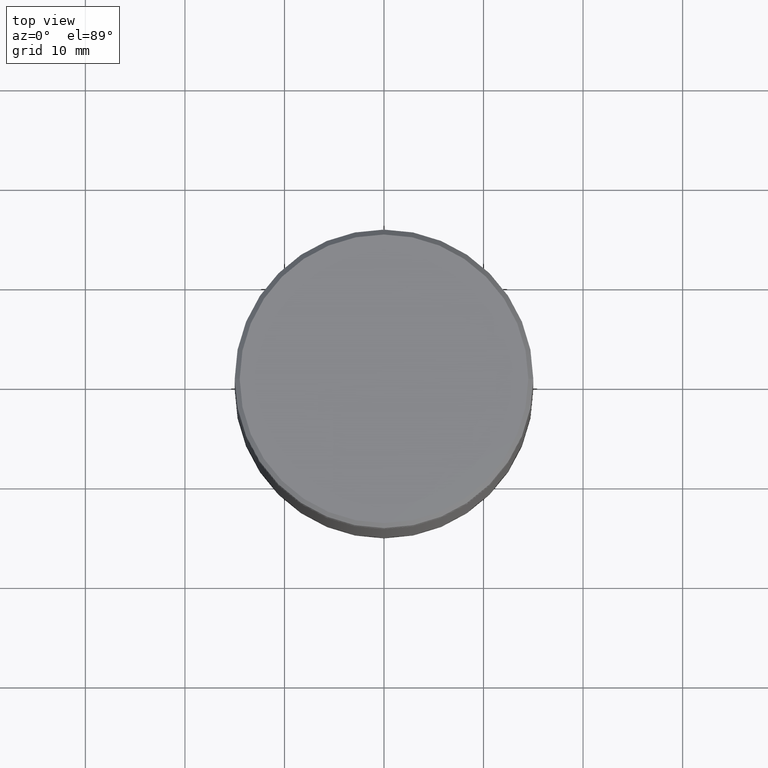
[diagram: clean part render]
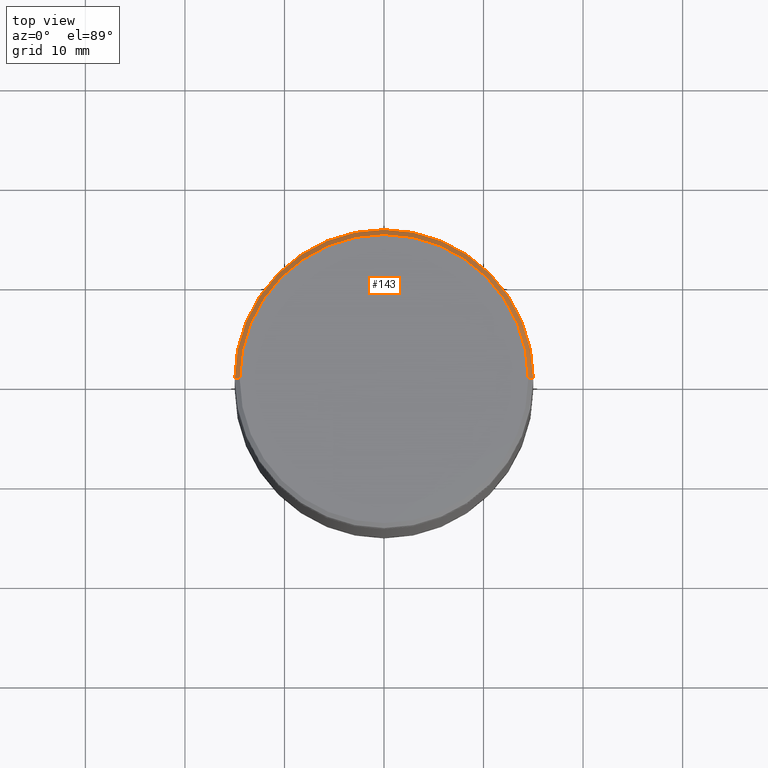
[diagram: same view with one face highlighted and labeled with its STEP entity id]
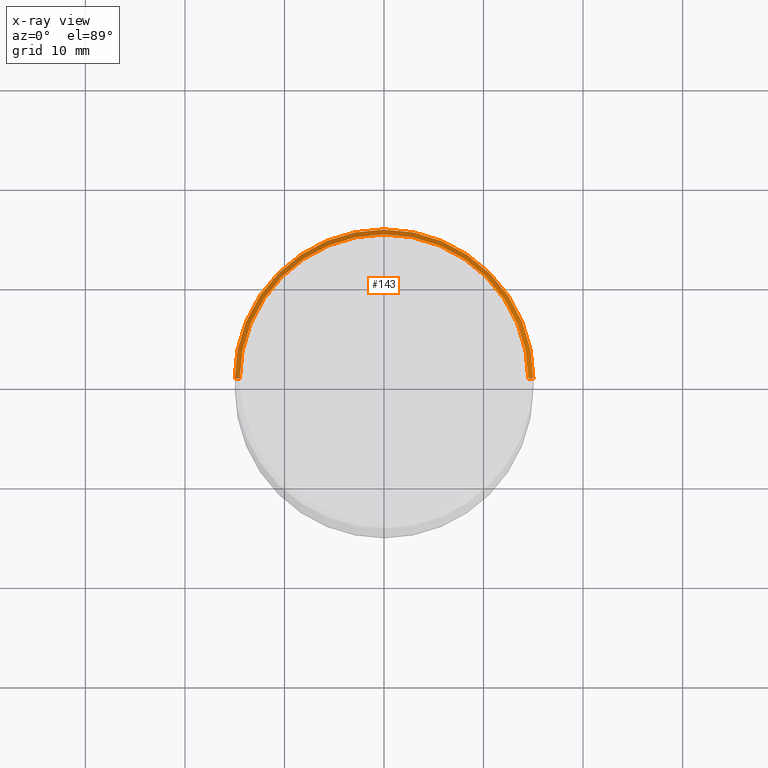
[diagram: x-ray of the same camera — body ghosted, the highlighted face saturated]
A machine part, top view. The second image highlights one B-rep face of the part: STEP entity #143.
The next image is the same camera in x-ray: the body ghosted, the highlighted face saturated — about 0% of this face is hidden behind the body in this view.
In plain terms, the highlighted conical surface has half-angle 45 deg.
Its self-contained STEP definition (entity closure, byte-faithful):
#4 = ORIENTED_EDGE ( 'NONE', *, *, #304, .T. ) ;
#24 = EDGE_LOOP ( 'NONE', ( #358, #4, #229, #368 ) ) ;
#31 = CARTESIAN_POINT ( 'NONE',  ( 0.000000000000000000, 0.000000000000000000, 0.000000000000000000 ) ) ;
#44 = AXIS2_PLACEMENT_3D ( 'NONE', #481, #349, #167 ) ;
#64 = CARTESIAN_POINT ( 'NONE',  ( -14.50000000000000355, 0.000000000000000000, 0.000000000000000000 ) ) ;
#132 = DIRECTION ( 'NONE',  ( 1.000000000000000000, 0.000000000000000000, 0.000000000000000000 ) ) ;
#143 = ADVANCED_FACE ( 'NONE', ( #416 ), #476, .T. ) ;
#148 = CIRCLE ( 'NONE', #44, 15.00000000000000000 ) ;
#167 = DIRECTION ( 'NONE',  ( 1.000000000000000000, 0.000000000000000000, 0.000000000000000000 ) ) ;
#171 = DIRECTION ( 'NONE',  ( -0.000000000000000000, -0.000000000000000000, 1.000000000000000000 ) ) ;
#180 = EDGE_CURVE ( 'NONE', #322, #218, #326, .T. ) ;
#193 = VERTEX_POINT ( 'NONE', #194 ) ;
#194 = CARTESIAN_POINT ( 'NONE',  ( 15.00000000000000000, 0.000000000000000000, -0.5000000000000038858 ) ) ;
#201 = DIRECTION ( 'NONE',  ( 0.000000000000000000, 0.000000000000000000, -1.000000000000000000 ) ) ;
#203 = VECTOR ( 'NONE', #264, 1000.000000000000000 ) ;
#218 = VERTEX_POINT ( 'NONE', #555 ) ;
#225 = EDGE_CURVE ( 'NONE', #448, #322, #502, .T. ) ;
#228 = AXIS2_PLACEMENT_3D ( 'NONE', #31, #201, #330 ) ;
#229 = ORIENTED_EDGE ( 'NONE', *, *, #511, .F. ) ;
#230 = CARTESIAN_POINT ( 'NONE',  ( -14.50000000000000355, 0.000000000000000000, 0.000000000000000000 ) ) ;
#238 = DIRECTION ( 'NONE',  ( -0.7071067811865414665, 0.000000000000000000, -0.7071067811865536790 ) ) ;
#257 = AXIS2_PLACEMENT_3D ( 'NONE', #563, #171, #132 ) ;
#264 = DIRECTION ( 'NONE',  ( 0.7071067811865414665, 8.659560562354858902E-17, -0.7071067811865536790 ) ) ;
#304 = EDGE_CURVE ( 'NONE', #448, #193, #515, .T. ) ;
#322 = VERTEX_POINT ( 'NONE', #230 ) ;
#326 = LINE ( 'NONE', #64, #560 ) ;
#330 = DIRECTION ( 'NONE',  ( -1.000000000000000000, 0.000000000000000000, 0.000000000000000000 ) ) ;
#349 = DIRECTION ( 'NONE',  ( 0.000000000000000000, 0.000000000000000000, -1.000000000000000000 ) ) ;
#358 = ORIENTED_EDGE ( 'NONE', *, *, #225, .F. ) ;
#368 = ORIENTED_EDGE ( 'NONE', *, *, #180, .F. ) ;
#416 = FACE_OUTER_BOUND ( 'NONE', #24, .T. ) ;
#442 = CARTESIAN_POINT ( 'NONE',  ( 14.50000000000000355, 1.775737858763662804E-15, 0.000000000000000000 ) ) ;
#448 = VERTEX_POINT ( 'NONE', #500 ) ;
#476 = CONICAL_SURFACE ( 'NONE', #228, 14.50000000000000355, 0.7853981633974396193 ) ;
#481 = CARTESIAN_POINT ( 'NONE',  ( 0.000000000000000000, 0.000000000000000000, -0.5000000000000038858 ) ) ;
#500 = CARTESIAN_POINT ( 'NONE',  ( 14.50000000000000355, 1.806354028742346196E-15, 0.000000000000000000 ) ) ;
#502 = CIRCLE ( 'NONE', #257, 14.50000000000000355 ) ;
#511 = EDGE_CURVE ( 'NONE', #218, #193, #148, .T. ) ;
#515 = LINE ( 'NONE', #442, #203 ) ;
#555 = CARTESIAN_POINT ( 'NONE',  ( -15.00000000000000000, 1.836970198721029589E-15, -0.5000000000000038858 ) ) ;
#560 = VECTOR ( 'NONE', #238, 1000.000000000000000 ) ;
#563 = CARTESIAN_POINT ( 'NONE',  ( 0.000000000000000000, 0.000000000000000000, 0.000000000000000000 ) ) ;